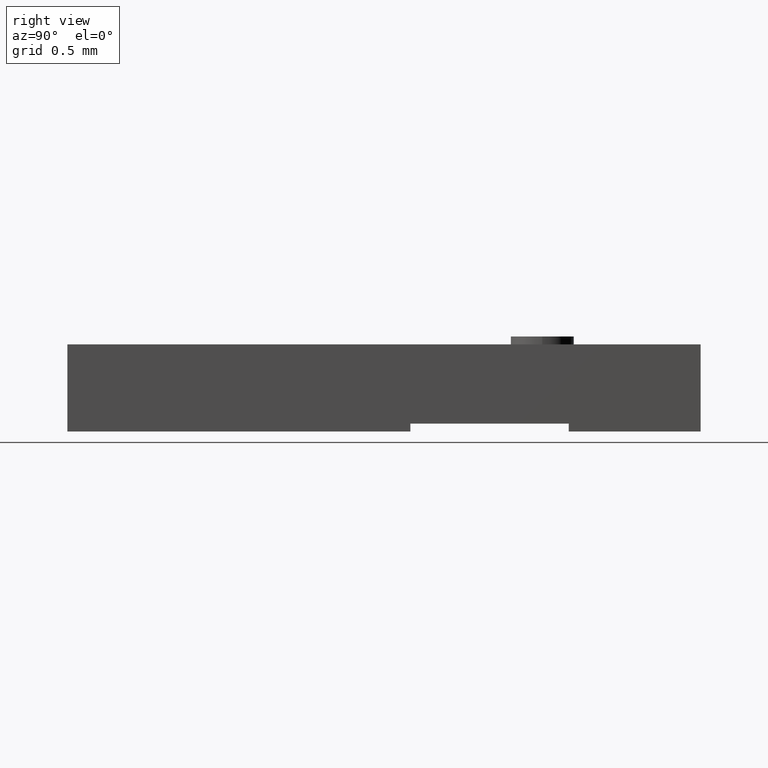
[diagram: clean part render]
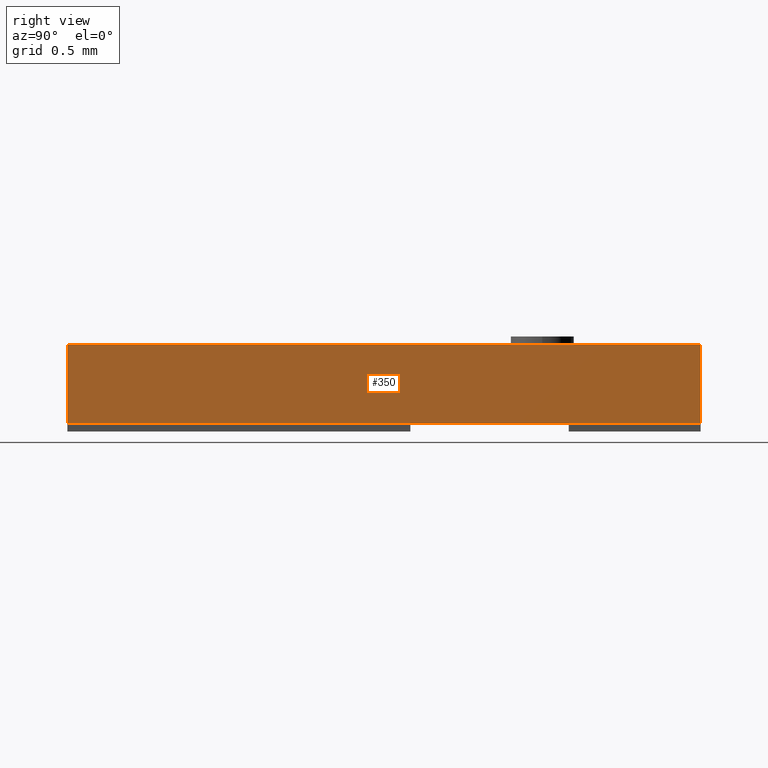
[diagram: same view with one face highlighted and labeled with its STEP entity id]
A machine part, right view. The second image highlights one B-rep face of the part: STEP entity #350.
In plain terms, the highlighted planar face has unit normal (1, 0, -0).
Its self-contained STEP definition (entity closure, byte-faithful):
#32 = ORIENTED_EDGE ( 'NONE', *, *, #264, .F. ) ;
#52 = EDGE_CURVE ( 'NONE', #427, #84, #145, .T. ) ;
#53 = CARTESIAN_POINT ( 'NONE',  ( 0.03350000000000363798, -0.05999999999994543032, 0.1539372584126108556 ) ) ;
#56 = VECTOR ( 'NONE', #249, 39.37007874015748143 ) ;
#84 = VERTEX_POINT ( 'NONE', #357 ) ;
#92 = LINE ( 'NONE', #189, #56 ) ;
#113 = VECTOR ( 'NONE', #380, 39.37007874015748143 ) ;
#114 = VERTEX_POINT ( 'NONE', #560 ) ;
#135 = PLANE ( 'NONE',  #294 ) ;
#145 = LINE ( 'NONE', #53, #604 ) ;
#149 = VERTEX_POINT ( 'NONE', #528 ) ;
#164 = DIRECTION ( 'NONE',  ( -0.000000000000000000, -0.000000000000000000, -1.000000000000000000 ) ) ;
#189 = CARTESIAN_POINT ( 'NONE',  ( 0.03350000000000363798, 0.000000000000000000, 0.01649999999999999731 ) ) ;
#191 = EDGE_CURVE ( 'NONE', #149, #84, #318, .T. ) ;
#199 = FACE_OUTER_BOUND ( 'NONE', #405, .T. ) ;
#216 = LINE ( 'NONE', #624, #626 ) ;
#249 = DIRECTION ( 'NONE',  ( 0.000000000000000000, -1.000000000000000000, 0.000000000000000000 ) ) ;
#264 = EDGE_CURVE ( 'NONE', #114, #149, #216, .T. ) ;
#294 = AXIS2_PLACEMENT_3D ( 'NONE', #606, #656, #654 ) ;
#318 = LINE ( 'NONE', #431, #113 ) ;
#350 = ADVANCED_FACE ( 'NONE', ( #199 ), #135, .T. ) ;
#357 = CARTESIAN_POINT ( 'NONE',  ( 0.03350000000000363798, -0.05999999999994543032, 0.001500000000000000031 ) ) ;
#358 = EDGE_CURVE ( 'NONE', #114, #427, #92, .T. ) ;
#371 = ORIENTED_EDGE ( 'NONE', *, *, #191, .F. ) ;
#380 = DIRECTION ( 'NONE',  ( 0.000000000000000000, -1.000000000000000000, 0.000000000000000000 ) ) ;
#405 = EDGE_LOOP ( 'NONE', ( #495, #371, #32, #456 ) ) ;
#408 = DIRECTION ( 'NONE',  ( -0.000000000000000000, -0.000000000000000000, -1.000000000000000000 ) ) ;
#427 = VERTEX_POINT ( 'NONE', #450 ) ;
#431 = CARTESIAN_POINT ( 'NONE',  ( 0.03350000000000363798, 0.000000000000000000, 0.001500000000000000031 ) ) ;
#450 = CARTESIAN_POINT ( 'NONE',  ( 0.03350000000000363798, -0.05999999999994543032, 0.01649999999999999731 ) ) ;
#456 = ORIENTED_EDGE ( 'NONE', *, *, #358, .T. ) ;
#495 = ORIENTED_EDGE ( 'NONE', *, *, #52, .T. ) ;
#528 = CARTESIAN_POINT ( 'NONE',  ( 0.03350000000000363798, 0.05999999999994543032, 0.001500000000000000031 ) ) ;
#560 = CARTESIAN_POINT ( 'NONE',  ( 0.03350000000000363798, 0.05999999999994543032, 0.01649999999999999731 ) ) ;
#604 = VECTOR ( 'NONE', #408, 39.37007874015748143 ) ;
#606 = CARTESIAN_POINT ( 'NONE',  ( 0.03350000000000363798, 0.000000000000000000, 0.1539372584126108556 ) ) ;
#624 = CARTESIAN_POINT ( 'NONE',  ( 0.03350000000000363798, 0.05999999999994543032, 0.1539372584126108556 ) ) ;
#626 = VECTOR ( 'NONE', #164, 39.37007874015748143 ) ;
#654 = DIRECTION ( 'NONE',  ( -0.000000000000000000, 0.000000000000000000, -1.000000000000000000 ) ) ;
#656 = DIRECTION ( 'NONE',  ( 1.000000000000000000, 0.000000000000000000, -0.000000000000000000 ) ) ;